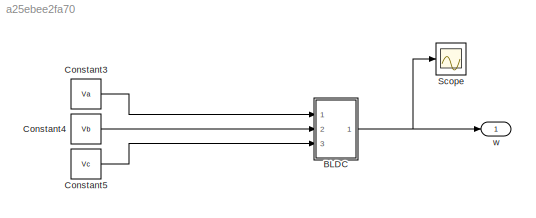
MODEL slx_a25ebee2fa70
KIND model
CONFIG AbsTol = auto
CONFIG EnableMultiTasking = off
CONFIG FixedStep = auto
CONFIG MaxStep = auto
CONFIG MinStep = auto
CONFIG RelTol = 1e-3
CONFIG SampleTimeConstraint = Unconstrained
CONFIG SolverName = VariableStepAuto
CONFIG StartTime = 0.0
CONFIG StopTime = 10.0
WORKSPACE source: mxarray member
WORKSPACE B: Simulink.Parameter (value not decoded)
WORKSPACE J: Simulink.Parameter (value not decoded)
WORKSPACE Ke: Simulink.Parameter (value not decoded)
WORKSPACE L: Simulink.Parameter (value not decoded)
WORKSPACE P: Simulink.Parameter (value not decoded)
WORKSPACE R: Simulink.Parameter (value not decoded)
WORKSPACE Tm: Simulink.Parameter (value not decoded)
WORKSPACE V: Simulink.Parameter (value not decoded)
WORKSPACE Va: Simulink.Parameter (value not decoded)
WORKSPACE Vb: Simulink.Parameter (value not decoded)
WORKSPACE Vc: Simulink.Parameter (value not decoded)
WORKSPACE w: Simulink.Parameter (value not decoded)
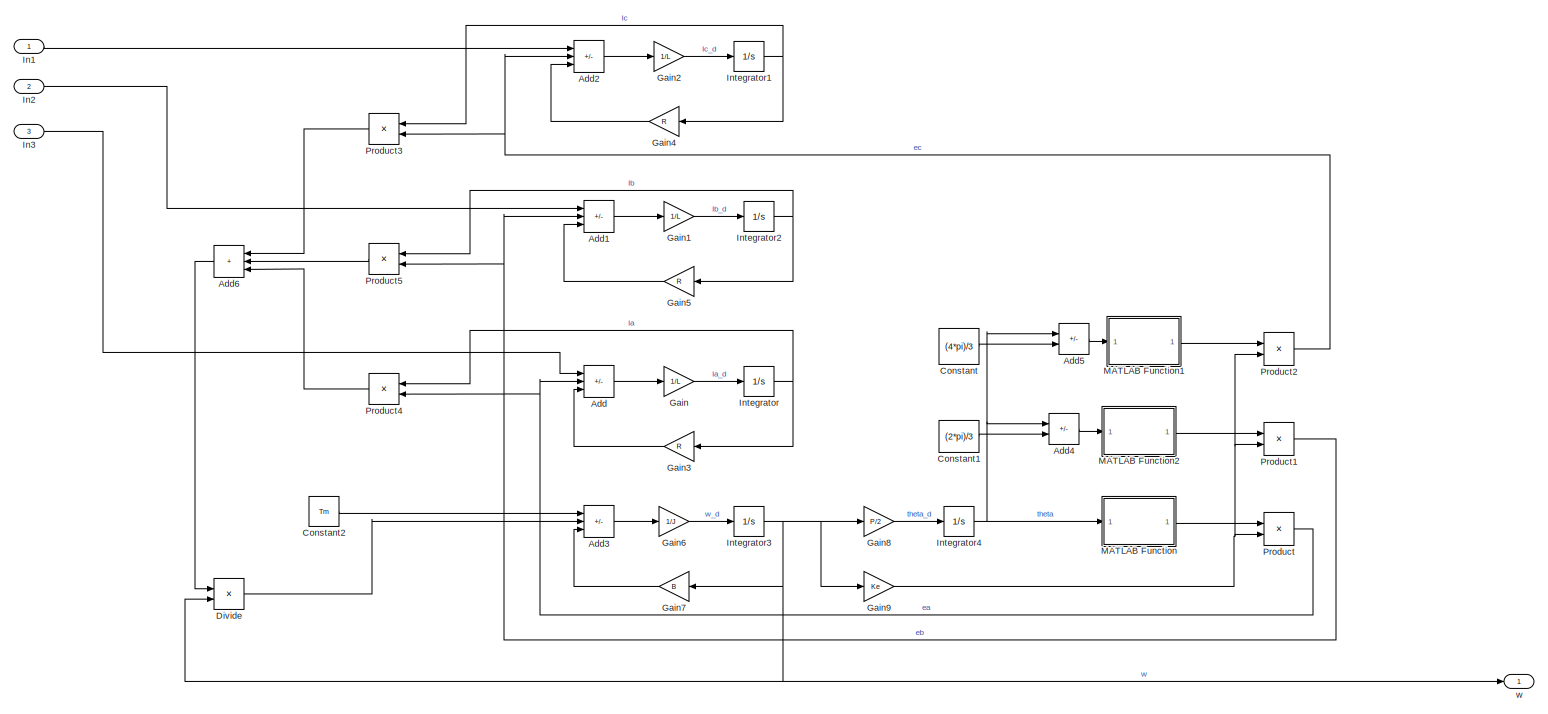
[diagram: BLDC - part 1/1, most of the canvas]
BLOCK [SubSystem] BLDC
  Ports = [3, 1]
  RequestExecContextInheritance = off
BLOCK [Sum] BLDC/Add
  IconShape = rectangular
  Inputs = +--
  Ports = [3, 1]
BLOCK [Sum] BLDC/Add1
  IconShape = rectangular
  Inputs = +--
  Ports = [3, 1]
BLOCK [Sum] BLDC/Add2
  IconShape = rectangular
  Inputs = +--
  Ports = [3, 1]
BLOCK [Sum] BLDC/Add3
  IconShape = rectangular
  Inputs = -+-
  Ports = [3, 1]
BLOCK [Sum] BLDC/Add4
  IconShape = rectangular
  Inputs = +-
  Ports = [2, 1]
BLOCK [Sum] BLDC/Add5
  IconShape = rectangular
  Inputs = +-
  Ports = [2, 1]
BLOCK [Sum] BLDC/Add6
  IconShape = rectangular
  Inputs = +++
  NameLocation = top
  Ports = [3, 1]
BLOCK [Constant] BLDC/Constant
  Value = (4*pi)/3
BLOCK [Constant] BLDC/Constant1
  Value = (2*pi)/3
BLOCK [Constant] BLDC/Constant2
  Value = Tm
BLOCK [Product] BLDC/Divide
  Inputs = */
  Ports = [2, 1]
BLOCK [Gain] BLDC/Gain
  Gain = 1/L
BLOCK [Gain] BLDC/Gain1
  Gain = 1/L
BLOCK [Gain] BLDC/Gain2
  Gain = 1/L
BLOCK [Gain] BLDC/Gain3
  Gain = R
  NameLocation = top
BLOCK [Gain] BLDC/Gain4
  Gain = R
  NameLocation = top
BLOCK [Gain] BLDC/Gain5
  Gain = R
  NameLocation = top
BLOCK [Gain] BLDC/Gain6
  Gain = 1/J
BLOCK [Gain] BLDC/Gain7
  Gain = B
  NameLocation = top
BLOCK [Gain] BLDC/Gain8
  Gain = P/2
BLOCK [Gain] BLDC/Gain9
  Gain = Ke
BLOCK [Inport] BLDC/In1
BLOCK [Inport] BLDC/In2
  Port = 2
BLOCK [Inport] BLDC/In3
  Port = 3
BLOCK [Integrator] BLDC/Integrator
  Ports = [1, 1]
BLOCK [Integrator] BLDC/Integrator1
  Ports = [1, 1]
BLOCK [Integrator] BLDC/Integrator2
  Ports = [1, 1]
BLOCK [Integrator] BLDC/Integrator3
  InitialCondition = 1
  Ports = [1, 1]
BLOCK [Integrator] BLDC/Integrator4
  Ports = [1, 1]
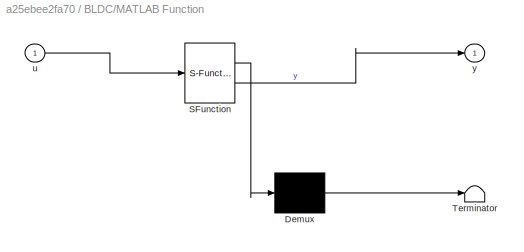
BLOCK [SubSystem] BLDC/MATLAB Function
  ErrorFcn = Stateflow.Translate.translate
  PermitHierarchicalResolution = ExplicitOnly
  Ports = [1, 1]
  RequestExecContextInheritance = off
  SFBlockType = MATLAB Function
  TreatAsAtomicUnit = on
BLOCK [Demux] BLDC/MATLAB Function/ Demux 
  Outputs = 1
  Ports = [1, 1]
BLOCK [S-Function] BLDC/MATLAB Function/ SFunction 
  EnableBusSupport = on
  FunctionName = sf_sfun
  PortCounts = [1 2]
  Ports = [1, 2]
  SFcnIsStateOwnerBlock = off
  SFunctionDeploymentMode = off
  Tag = Stateflow S-Function 2
BLOCK [Terminator] BLDC/MATLAB Function/ Terminator 
BLOCK [Inport] BLDC/MATLAB Function/u
BLOCK [Outport] BLDC/MATLAB Function/y
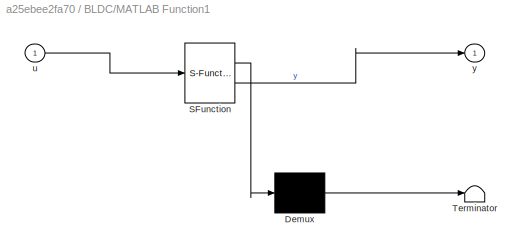
BLOCK [SubSystem] BLDC/MATLAB Function1
  ErrorFcn = Stateflow.Translate.translate
  PermitHierarchicalResolution = ExplicitOnly
  Ports = [1, 1]
  RequestExecContextInheritance = off
  SFBlockType = MATLAB Function
  TreatAsAtomicUnit = on
BLOCK [Demux] BLDC/MATLAB Function1/ Demux 
  Outputs = 1
  Ports = [1, 1]
BLOCK [S-Function] BLDC/MATLAB Function1/ SFunction 
  EnableBusSupport = on
  FunctionName = sf_sfun
  PortCounts = [1 2]
  Ports = [1, 2]
  SFcnIsStateOwnerBlock = off
  SFunctionDeploymentMode = off
  Tag = Stateflow S-Function 1
BLOCK [Terminator] BLDC/MATLAB Function1/ Terminator 
BLOCK [Inport] BLDC/MATLAB Function1/u
BLOCK [Outport] BLDC/MATLAB Function1/y
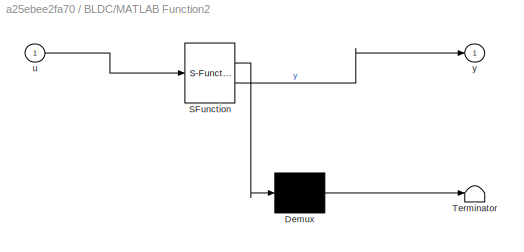
BLOCK [SubSystem] BLDC/MATLAB Function2
  ErrorFcn = Stateflow.Translate.translate
  PermitHierarchicalResolution = ExplicitOnly
  Ports = [1, 1]
  RequestExecContextInheritance = off
  SFBlockType = MATLAB Function
  TreatAsAtomicUnit = on
BLOCK [Demux] BLDC/MATLAB Function2/ Demux 
  Outputs = 1
  Ports = [1, 1]
BLOCK [S-Function] BLDC/MATLAB Function2/ SFunction 
  EnableBusSupport = on
  FunctionName = sf_sfun
  PortCounts = [1 2]
  Ports = [1, 2]
  SFcnIsStateOwnerBlock = off
  SFunctionDeploymentMode = off
  Tag = Stateflow S-Function 3
BLOCK [Terminator] BLDC/MATLAB Function2/ Terminator 
BLOCK [Inport] BLDC/MATLAB Function2/u
BLOCK [Outport] BLDC/MATLAB Function2/y
BLOCK [Product] BLDC/Product
  Ports = [2, 1]
BLOCK [Product] BLDC/Product1
  Ports = [2, 1]
BLOCK [Product] BLDC/Product2
  Ports = [2, 1]
BLOCK [Product] BLDC/Product3
  NameLocation = top
  Ports = [2, 1]
BLOCK [Product] BLDC/Product4
  NameLocation = top
  Ports = [2, 1]
BLOCK [Product] BLDC/Product5
  NameLocation = top
  Ports = [2, 1]
BLOCK [Outport] BLDC/w
BLOCK [Constant] Constant3
  Value = Va
BLOCK [Constant] Constant4
  Value = Vb
BLOCK [Constant] Constant5
  Value = Vc
BLOCK [Scope] Scope
  Floating = off
  NumInputPorts = 1
  Ports = [1]
  ScopeSpecificationString = Simulink.scopes.TimeScopeBlockCfg('CurrentConfiguration', extmgr.ConfigurationSet(extmgr.Configuration('Core','General UI',true),extmgr.Configuration('Core','Source UI',true),extmgr.Configuration('Sources','WiredSimulink',true),extmgr.Configuration('Visuals','Time Domain',true,'SerializedDisplays',{struct('MinYLimReal','-1137.1429','MaxYLimReal','127.46032','YLabelReal','','MinYLimMag','  0.00000'...<+1367ch>
BLOCK [Outport] w
LINE BLDC/Add1:1 -> BLDC/Gain1:1
LINE BLDC/Add2:1 -> BLDC/Gain2:1
LINE BLDC/Add3:1 -> BLDC/Gain6:1
LINE BLDC/Add4:1 -> BLDC/MATLAB Function2:1
LINE BLDC/Add5:1 -> BLDC/MATLAB Function1:1
LINE BLDC/Add6:1 -> BLDC/Divide:1
LINE BLDC/Add:1 -> BLDC/Gain:1
LINE BLDC/Constant1:1 -> BLDC/Add4:2
LINE BLDC/Constant2:1 -> BLDC/Add3:1
LINE BLDC/Constant:1 -> BLDC/Add5:2
LINE BLDC/Divide:1 -> BLDC/Add3:2
LINE BLDC/Gain1:1 -> BLDC/Integrator2:1
LINE BLDC/Gain2:1 -> BLDC/Integrator1:1
LINE BLDC/Gain3:1 -> BLDC/Add:3
LINE BLDC/Gain4:1 -> BLDC/Add2:3
LINE BLDC/Gain5:1 -> BLDC/Add1:3
LINE BLDC/Gain6:1 -> BLDC/Integrator3:1
LINE BLDC/Gain7:1 -> BLDC/Add3:3
LINE BLDC/Gain8:1 -> BLDC/Integrator4:1
NET BLDC/Gain9:1 -> BLDC/Product1:2, BLDC/Product2:2, BLDC/Product:2
LINE BLDC/Gain:1 -> BLDC/Integrator:1
LINE BLDC/In1:1 -> BLDC/Add2:1
LINE BLDC/In2:1 -> BLDC/Add1:1
LINE BLDC/In3:1 -> BLDC/Add:1
NET BLDC/Integrator1:1 -> BLDC/Gain4:1, BLDC/Product3:1
NET BLDC/Integrator2:1 -> BLDC/Gain5:1, BLDC/Product5:1
NET BLDC/Integrator3:1 -> BLDC/Divide:2, BLDC/Gain7:1, BLDC/Gain8:1, BLDC/Gain9:1, BLDC/w:1
NET BLDC/Integrator4:1 -> BLDC/Add4:1, BLDC/Add5:1, BLDC/MATLAB Function:1
NET BLDC/Integrator:1 -> BLDC/Gain3:1, BLDC/Product4:1
LINE BLDC/MATLAB Function1:1 -> BLDC/Product2:1
LINE BLDC/MATLAB Function2:1 -> BLDC/Product1:1
LINE BLDC/MATLAB Function:1 -> BLDC/Product:1
NET BLDC/Product1:1 -> BLDC/Add1:2, BLDC/Product5:2
NET BLDC/Product2:1 -> BLDC/Add2:2, BLDC/Product3:2
LINE BLDC/Product3:1 -> BLDC/Add6:1
LINE BLDC/Product4:1 -> BLDC/Add6:3
LINE BLDC/Product5:1 -> BLDC/Add6:2
NET BLDC/Product:1 -> BLDC/Add:2, BLDC/Product4:2
NET BLDC:1 -> Scope:1, w:1
LINE Constant3:1 -> BLDC:1
LINE Constant4:1 -> BLDC:2
LINE Constant5:1 -> BLDC:3
note: NET lines group one-source signal fan-out (src -> all destinations, sorted); 1:1 wires keep LINE
CHART BLDC/MATLAB Function states=1 transitions=1
  STATE_LABEL 'eML_blk_kernel()'
  STATE_LABEL 'SCRIPT:\nfunction y = fcn(u)\n\nif (u>=0 && u<((2*pi)/3))\n    y = 1;\nelseif(u>=((2*pi)/3) && u<pi)\n    y = 1-(6/pi*(u-((2*pi)/3)));\nelseif(u>=pi && u<((5*pi)/3))\n    y = -1;\nelse\n    y = -1+(6/pi*(u-((5*pi)/3)));\nend\nend\n\n'  <repeated x3 — deduplicated; at blocks: MATLAB Function, MATLAB Function2, MATLAB Function1>
CHART BLDC/MATLAB Function2 states=1 transitions=1
  STATE_LABEL 'eML_blk_kernel()'
CHART BLDC/MATLAB Function1 states=1 transitions=1
  STATE_LABEL 'eML_blk_kernel()'
CHART  states=0 transitions=0
CHART  states=0 transitions=0
CHART  states=0 transitions=0
